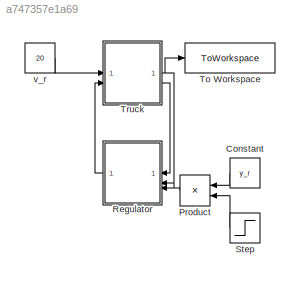
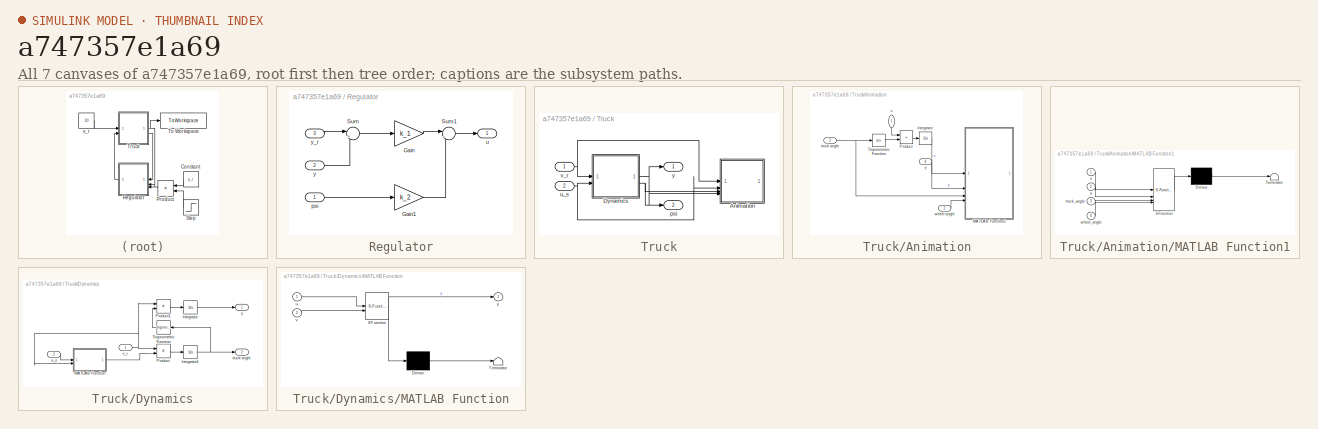
[diagram: thumbnail index - all 7 canvases of the model, root first then tree order]
MODEL slx_a747357e1a69
KIND model
CONFIG AbsTol = auto
CONFIG EnableMultiTasking = off
CONFIG FixedStep = auto
CONFIG MaxStep = 0.01
CONFIG MinStep = auto
CONFIG RelTol = 1e-3
CONFIG SampleTimeConstraint = Unconstrained
CONFIG SolverName = VariableStepAuto
CONFIG StartTime = 0.0
CONFIG StopTime = 30
BLOCK [Constant] Constant
  NameLocation = top
  Value = y_r
BLOCK [Product] Product
  NameLocation = top
BLOCK [SubSystem] Regulator
  NameLocation = top
BLOCK [Gain] Regulator/Gain
  Gain = k_1
BLOCK [Gain] Regulator/Gain1
  Gain = k_2
BLOCK [Sum] Regulator/Sum
  Inputs = |+-
BLOCK [Sum] Regulator/Sum1
  Inputs = |--
BLOCK [Inport] Regulator/psi
BLOCK [Outport] Regulator/u
BLOCK [Inport] Regulator/y
  Port = 2
BLOCK [Inport] Regulator/y_r
  Port = 3
BLOCK [Step] Step
  Before = -1
  NameLocation = top
  SampleTime = 0
  Time = 10
BLOCK [ToWorkspace] To Workspace
  FixptAsFi = on
  MaxDataPoints = inf
  SampleTime = -1
  VariableName = y
BLOCK [SubSystem] Truck
BLOCK [SubSystem] Truck/Animation
BLOCK [Integrator] Truck/Animation/Integrator
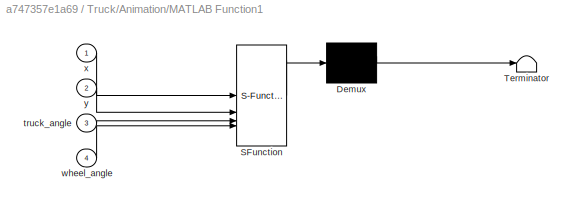
BLOCK [SubSystem] Truck/Animation/MATLAB Function1
  ErrorFcn = Stateflow.Translate.translate
  PermitHierarchicalResolution = ExplicitOnly
  SFBlockType = MATLAB Function
  SystemSampleTime = 1/30
  TreatAsAtomicUnit = on
BLOCK [Demux] Truck/Animation/MATLAB Function1/ Demux 
  Outputs = 1
BLOCK [S-Function] Truck/Animation/MATLAB Function1/ SFunction 
  EnableBusSupport = on
  FunctionName = sf_sfun
  PortCounts = [4 1]
  SFcnIsStateOwnerBlock = off
  SFunctionDeploymentMode = off
  Tag = Stateflow S-Function 3
BLOCK [Terminator] Truck/Animation/MATLAB Function1/ Terminator 
BLOCK [Inport] Truck/Animation/MATLAB Function1/truck_angle
  Port = 3
BLOCK [Inport] Truck/Animation/MATLAB Function1/wheel_angle
  Port = 4
BLOCK [Inport] Truck/Animation/MATLAB Function1/x
BLOCK [Inport] Truck/Animation/MATLAB Function1/y
  Port = 2
BLOCK [Product] Truck/Animation/Product
BLOCK [Trigonometry] Truck/Animation/Trigonometric Function
  Operator = cos
BLOCK [Inport] Truck/Animation/truck angle
  Port = 3
BLOCK [Inport] Truck/Animation/v
  NameLocation = left
BLOCK [Inport] Truck/Animation/wheel angle
  Port = 2
BLOCK [Inport] Truck/Animation/y
  Port = 4
BLOCK [SubSystem] Truck/Dynamics
  ClipboardFcn = parameters_truck.m
BLOCK [Integrator] Truck/Dynamics/Integrator
  InitialCondition = -2
BLOCK [Integrator] Truck/Dynamics/Integrator1
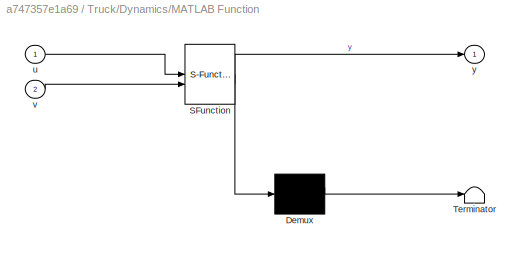
BLOCK [SubSystem] Truck/Dynamics/MATLAB Function
  ErrorFcn = Stateflow.Translate.translate
  PermitHierarchicalResolution = ExplicitOnly
  SFBlockType = MATLAB Function
  TreatAsAtomicUnit = on
BLOCK [Demux] Truck/Dynamics/MATLAB Function/ Demux 
  Outputs = 1
BLOCK [S-Function] Truck/Dynamics/MATLAB Function/ SFunction 
  EnableBusSupport = on
  FunctionName = sf_sfun
  PortCounts = [2 2]
  SFcnIsStateOwnerBlock = off
  SFunctionDeploymentMode = off
  Tag = Stateflow S-Function 1
BLOCK [Terminator] Truck/Dynamics/MATLAB Function/ Terminator 
BLOCK [Inport] Truck/Dynamics/MATLAB Function/u
BLOCK [Inport] Truck/Dynamics/MATLAB Function/v
  Port = 2
BLOCK [Outport] Truck/Dynamics/MATLAB Function/y
BLOCK [Product] Truck/Dynamics/Product
BLOCK [Product] Truck/Dynamics/Product1
BLOCK [Trigonometry] Truck/Dynamics/Trigonometric Function
  NameLocation = top
BLOCK [Outport] Truck/Dynamics/truck angle
  Port = 2
BLOCK [Inport] Truck/Dynamics/u_s
  Port = 2
BLOCK [Inport] Truck/Dynamics/v_r
BLOCK [Outport] Truck/Dynamics/y
BLOCK [Outport] Truck/psi
  Port = 2
BLOCK [Inport] Truck/u_s
  Port = 2
BLOCK [Inport] Truck/v_r
BLOCK [Outport] Truck/y
BLOCK [Constant] v_r
  Value = 20
LINE Constant:1 -> Product:1
LINE Product:1 -> Regulator:3
LINE Regulator/Gain1:1 -> Regulator/Sum1:2
LINE Regulator/Gain:1 -> Regulator/Sum1:1
LINE Regulator/Sum1:1 -> Regulator/u:1
LINE Regulator/Sum:1 -> Regulator/Gain:1
LINE Regulator/psi:1 -> Regulator/Gain1:1
LINE Regulator/y:1 -> Regulator/Sum:2
LINE Regulator/y_r:1 -> Regulator/Sum:1
LINE Regulator:1 -> Truck:2
LINE Step:1 -> Product:2
LINE Truck/Animation/Integrator:1 -> Truck/Animation/MATLAB Function1:1
LINE Truck/Animation/Product:1 -> Truck/Animation/Integrator:1
LINE Truck/Animation/Trigonometric Function:1 -> Truck/Animation/Product:2
NET Truck/Animation/truck angle:1 -> Truck/Animation/MATLAB Function1:3, Truck/Animation/Trigonometric Function:1
LINE Truck/Animation/v:1 -> Truck/Animation/Product:1
LINE Truck/Animation/wheel angle:1 -> Truck/Animation/MATLAB Function1:4
LINE Truck/Animation/y:1 -> Truck/Animation/MATLAB Function1:2
NET Truck/Dynamics/Integrator1:1 -> Truck/Dynamics/Trigonometric Function:1, Truck/Dynamics/truck angle:1
LINE Truck/Dynamics/Integrator:1 -> Truck/Dynamics/y:1
LINE Truck/Dynamics/MATLAB Function:1 -> Truck/Dynamics/Product:2
LINE Truck/Dynamics/Product1:1 -> Truck/Dynamics/Integrator:1
LINE Truck/Dynamics/Product:1 -> Truck/Dynamics/Integrator1:1
LINE Truck/Dynamics/Trigonometric Function:1 -> Truck/Dynamics/Product1:2
LINE Truck/Dynamics/u_s:1 -> Truck/Dynamics/MATLAB Function:1
NET Truck/Dynamics/v_r:1 -> Truck/Dynamics/MATLAB Function:2, Truck/Dynamics/Product1:1, Truck/Dynamics/Product:1
NET Truck/Dynamics:1 -> Truck/Animation:4, Truck/y:1
NET Truck/Dynamics:2 -> Truck/Animation:3, Truck/psi:1
NET Truck/u_s:1 -> Truck/Animation:2, Truck/Dynamics:2
NET Truck/v_r:1 -> Truck/Animation:1, Truck/Dynamics:1
NET Truck:1 -> Regulator:2, To Workspace:1
LINE Truck:2 -> Regulator:1
LINE v_r:1 -> Truck:1
note: NET lines group one-source signal fan-out (src -> all destinations, sorted); 1:1 wires keep LINE
CHART Truck/Dynamics/MATLAB Function states=1 transitions=1
  STATE_LABEL 'eML_blk_kernel()'
  STATE_LABEL 'SCRIPT:\nfunction y = saturation(u,v)\n    Pmax = 400000;\n    epsilon = 0.1;\n    \n    sat = Pmax/sqrt(v^2+epsilon);\n    y = max(min(u,sat),-sat);\n'
CHART Truck/Animation/MATLAB Function1 states=1 transitions=1
  STATE_LABEL 'eML_blk_kernel()'
  STATE_LABEL "SCRIPT:\nfunction plot_truck(x,y,truck_angle,wheel_angle)\n    % Parameters\n    l = 8;\n    persistent Truck;\n\n    % Plotting Truck\n    if isempty(Truck)\n        Truck = initialize_plot();\n    else\n        update_truck_position(Truck,x,y,truck_angle,wheel_angle);\n    end    \n\n    drawnow;\n\n    % Functions\n    function Truck = initialize_plot()\n        % Create figure\n        figure('position',[100,10...<+2388ch>"
CHART  states=0 transitions=0
CHART  states=0 transitions=0
